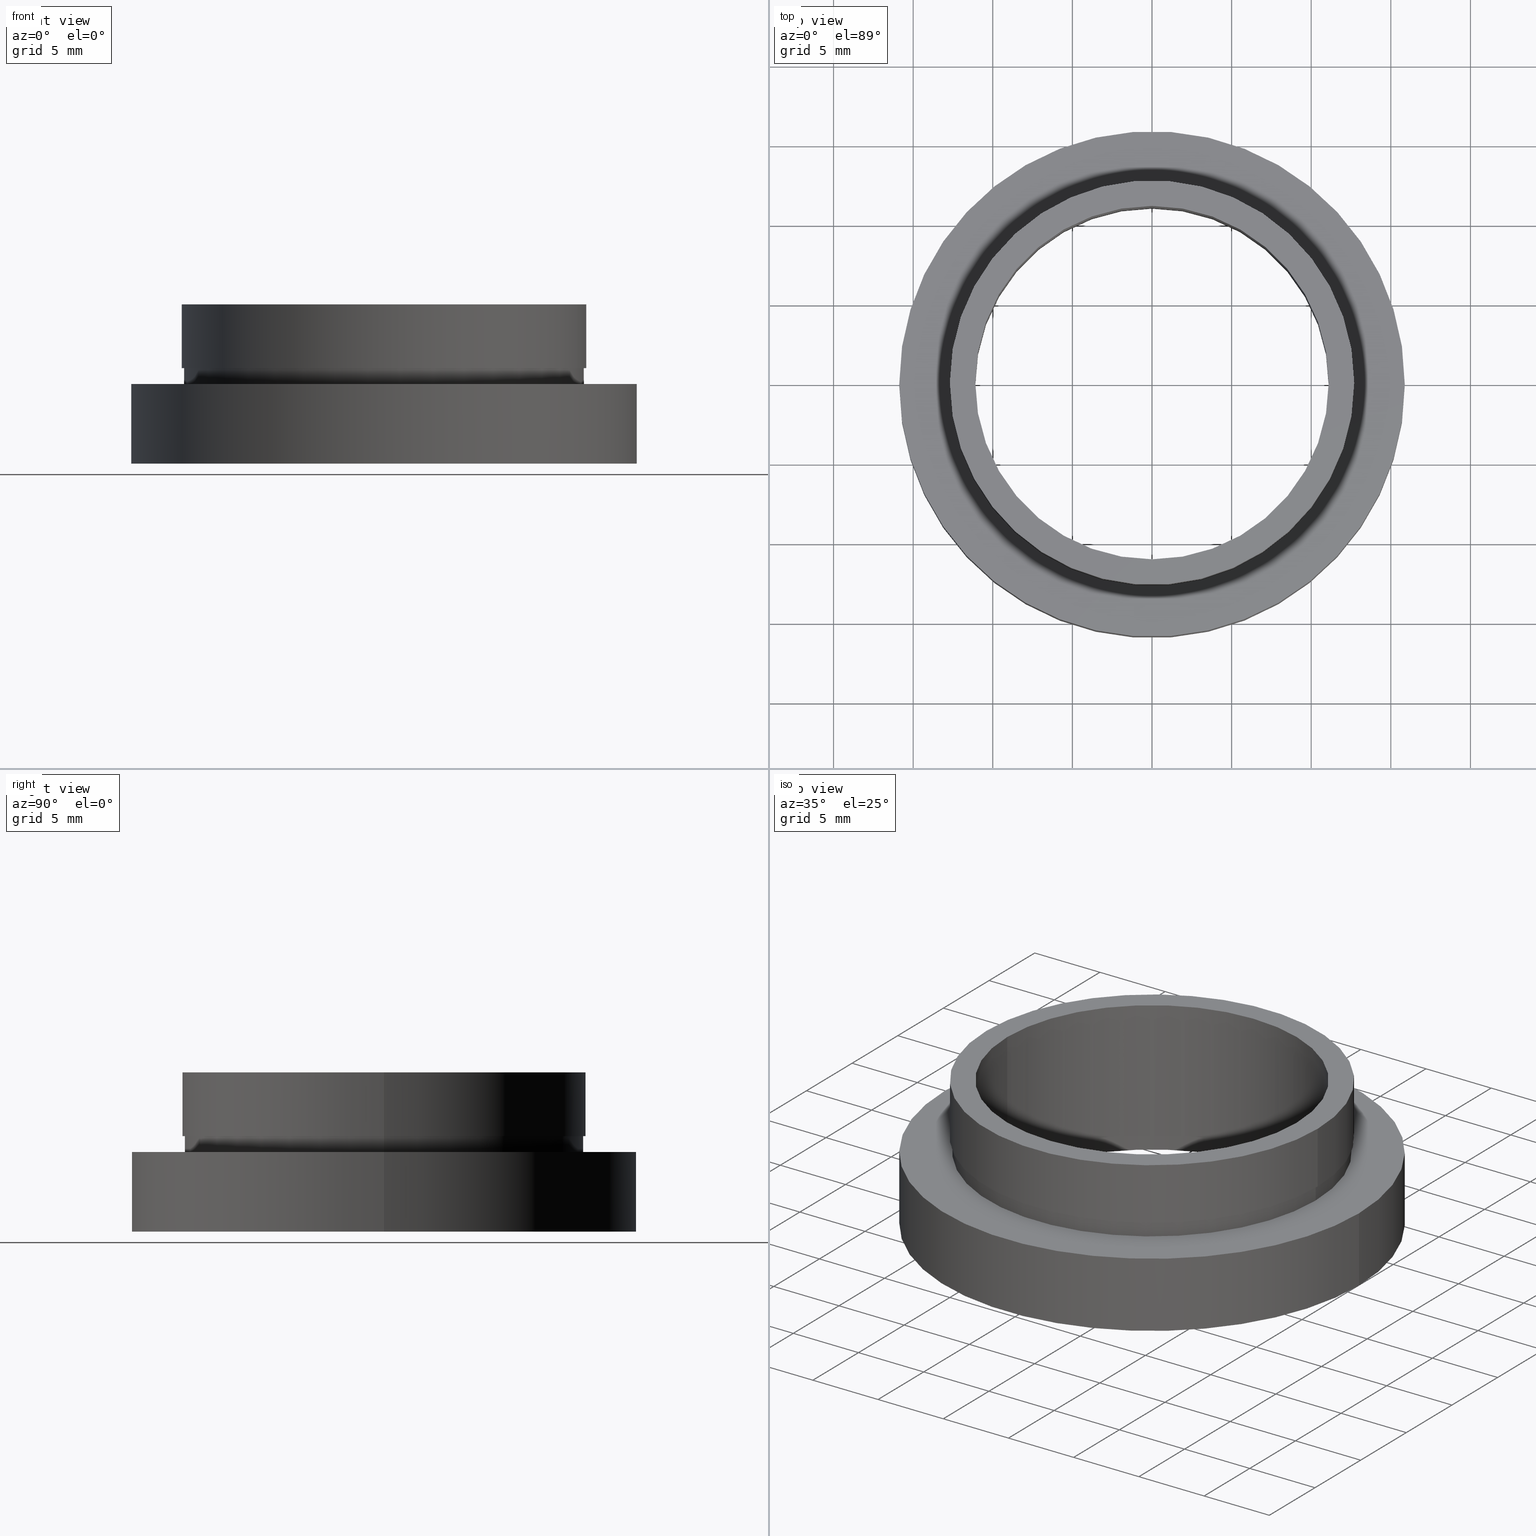
[diagram: canonical four-view strip — front | top / right | iso, engineering-drawing reading convention]
A machine part, canonical four-view strip (front | top / right | iso — engineering-drawing reading convention). The complete STEP part file that produces these views, byte-faithful:
ISO-10303-21;
HEADER;
FILE_DESCRIPTION (( 'STEP AP214' ),
    '1' );
FILE_NAME ('504076.STEP',
    '2019-09-16T08:20:47',
    ( 'user' ),
    ( '΢���й�' ),
    'SwSTEP 2.0',
    'SolidWorks 2016',
    '' );
FILE_SCHEMA (( 'AUTOMOTIVE_DESIGN' ));
ENDSEC;

DATA;
#1 = ADVANCED_FACE ( 'NONE', ( #333 ), #205, .T. ) ;
#2 = DIRECTION ( 'NONE',  ( -0.0000000000000000000, -0.0000000000000000000, -1.000000000000000000 ) ) ;
#3 = EDGE_CURVE ( 'NONE', #64, #320, #13, .T. ) ;
#4 = DIRECTION ( 'NONE',  ( -1.000000000000000000, 0.0000000000000000000, 0.0000000000000000000 ) ) ;
#5 = ORIENTED_EDGE ( 'NONE', *, *, #155, .T. ) ;
#6 = EDGE_CURVE ( 'NONE', #414, #295, #149, .T. ) ;
#7 = DIRECTION ( 'NONE',  ( -0.0000000000000000000, -0.0000000000000000000, -1.000000000000000000 ) ) ;
#8 = ORIENTED_EDGE ( 'NONE', *, *, #155, .F. ) ;
#9 = ADVANCED_FACE ( 'NONE', ( #190 ), #60, .T. ) ;
#10 = UNCERTAINTY_MEASURE_WITH_UNIT (LENGTH_MEASURE( 1.000000000000000100E-005 ), #168, 'distance_accuracy_value', 'NONE');
#11 = DIRECTION ( 'NONE',  ( -0.0000000000000000000, -0.0000000000000000000, -1.000000000000000000 ) ) ;
#12 =( LENGTH_UNIT ( ) NAMED_UNIT ( * ) SI_UNIT ( .MILLI., .METRE. ) );
#13 = CIRCLE ( 'NONE', #192, 12.55000000000000200 ) ;
#14 = EDGE_CURVE ( 'NONE', #202, #249, #113, .T. ) ;
#15 = SURFACE_STYLE_USAGE ( .BOTH. , #153 ) ;
#16 = DIRECTION ( 'NONE',  ( -0.0000000000000000000, -0.0000000000000000000, -1.000000000000000000 ) ) ;
#17 = DIRECTION ( 'NONE',  ( 0.0000000000000000000, 0.0000000000000000000, 1.000000000000000000 ) ) ;
#18 = EDGE_CURVE ( 'NONE', #320, #64, #327, .T. ) ;
#19 = DIRECTION ( 'NONE',  ( -1.000000000000000000, 0.0000000000000000000, 0.0000000000000000000 ) ) ;
#20 = CIRCLE ( 'NONE', #255, 11.10000000000000100 ) ;
#21 =( GEOMETRIC_REPRESENTATION_CONTEXT ( 3 ) GLOBAL_UNCERTAINTY_ASSIGNED_CONTEXT ( ( #264 ) ) GLOBAL_UNIT_ASSIGNED_CONTEXT ( ( #95, #408, #51 ) ) REPRESENTATION_CONTEXT ( 'NONE', 'WORKASPACE' ) );
#22 = ORIENTED_EDGE ( 'NONE', *, *, #411, .F. ) ;
#23 = CIRCLE ( 'NONE', #293, 11.10000000000000100 ) ;
#24 = CARTESIAN_POINT ( 'NONE',  ( 0.0000000000000000000, 0.0000000000000000000, 0.0000000000000000000 ) ) ;
#25 = CARTESIAN_POINT ( 'NONE',  ( 0.0000000000000000000, 0.0000000000000000000, -5.000000000000000900 ) ) ;
#26 =( NAMED_UNIT ( * ) SI_UNIT ( $, .STERADIAN. ) SOLID_ANGLE_UNIT ( ) );
#27 = MECHANICAL_DESIGN_GEOMETRIC_PRESENTATION_REPRESENTATION (  '', ( #82 ), #21 ) ;
#28 = CARTESIAN_POINT ( 'NONE',  ( -11.10000000000000100, 0.0000000000000000000, -10.00000000000000000 ) ) ;
#29 = EDGE_CURVE ( 'NONE', #249, #195, #245, .T. ) ;
#30 = FACE_OUTER_BOUND ( 'NONE', #346, .T. ) ;
#31 = EDGE_LOOP ( 'NONE', ( #308, #97, #74, #338 ) ) ;
#32 = SURFACE_STYLE_FILL_AREA ( #69 ) ;
#33 = FILL_AREA_STYLE_COLOUR ( '', #382 ) ;
#34 = EDGE_CURVE ( 'NONE', #66, #403, #78, .T. ) ;
#35 = ORIENTED_EDGE ( 'NONE', *, *, #14, .T. ) ;
#36 = ADVANCED_FACE ( 'NONE', ( #360 ), #318, .T. ) ;
#37 = COLOUR_RGB ( '',1.000000000000000000, 1.000000000000000000, 1.000000000000000000 ) ;
#38 = CARTESIAN_POINT ( 'NONE',  ( 0.0000000000000000000, 0.0000000000000000000, -4.000000000000000000 ) ) ;
#39 = DIRECTION ( 'NONE',  ( -1.000000000000000000, 0.0000000000000000000, 0.0000000000000000000 ) ) ;
#40 = EDGE_CURVE ( 'NONE', #414, #322, #268, .T. ) ;
#41 = UNCERTAINTY_MEASURE_WITH_UNIT (LENGTH_MEASURE( 1.000000000000000100E-005 ), #388, 'distance_accuracy_value', 'NONE');
#42 = EDGE_CURVE ( 'NONE', #379, #403, #100, .T. ) ;
#43 = ORIENTED_EDGE ( 'NONE', *, *, #157, .F. ) ;
#44 = VERTEX_POINT ( 'NONE', #427 ) ;
#45 = FACE_BOUND ( 'NONE', #272, .T. ) ;
#46 = DIRECTION ( 'NONE',  ( -0.0000000000000000000, -0.0000000000000000000, -1.000000000000000000 ) ) ;
#47 = CARTESIAN_POINT ( 'NONE',  ( 15.87500000000000000, 1.944126793646423200E-015, -19.14057971014493000 ) ) ;
#48 =( GEOMETRIC_REPRESENTATION_CONTEXT ( 3 ) GLOBAL_UNCERTAINTY_ASSIGNED_CONTEXT ( ( #281 ) ) GLOBAL_UNIT_ASSIGNED_CONTEXT ( ( #297, #111, #239 ) ) REPRESENTATION_CONTEXT ( 'NONE', 'WORKASPACE' ) );
#49 = ORIENTED_EDGE ( 'NONE', *, *, #34, .T. ) ;
#50 = EDGE_CURVE ( 'NONE', #322, #414, #172, .T. ) ;
#51 =( NAMED_UNIT ( * ) SI_UNIT ( $, .STERADIAN. ) SOLID_ANGLE_UNIT ( ) );
#52 = PRESENTATION_STYLE_ASSIGNMENT (( #421 ) ) ;
#53 = VECTOR ( 'NONE', #292, 1000.000000000000000 ) ;
#54 = DIRECTION ( 'NONE',  ( -1.000000000000000000, 0.0000000000000000000, 0.0000000000000000000 ) ) ;
#55 = FILL_AREA_STYLE ('',( #386 ) ) ;
#56 = DIRECTION ( 'NONE',  ( -0.0000000000000000000, -0.0000000000000000000, -1.000000000000000000 ) ) ;
#57 = DIRECTION ( 'NONE',  ( -1.000000000000000000, 0.0000000000000000000, 0.0000000000000000000 ) ) ;
#58 = ORIENTED_EDGE ( 'NONE', *, *, #157, .T. ) ;
#59 = AXIS2_PLACEMENT_3D ( 'NONE', #67, #349, #201 ) ;
#60 = CYLINDRICAL_SURFACE ( 'NONE', #90, 12.55000000000000200 ) ;
#61 = CIRCLE ( 'NONE', #306, 12.70000000000000100 ) ;
#62 = AXIS2_PLACEMENT_3D ( 'NONE', #331, #298, #241 ) ;
#63 = CARTESIAN_POINT ( 'NONE',  ( 12.55000000000000200, 1.536931732929928600E-015, -19.14057971014493000 ) ) ;
#64 = VERTEX_POINT ( 'NONE', #248 ) ;
#65 = DIRECTION ( 'NONE',  ( -1.000000000000000000, 0.0000000000000000000, 0.0000000000000000000 ) ) ;
#66 = VERTEX_POINT ( 'NONE', #364 ) ;
#67 = CARTESIAN_POINT ( 'NONE',  ( 0.0000000000000000000, 0.0000000000000000000, -5.000000000000000900 ) ) ;
#68 = CARTESIAN_POINT ( 'NONE',  ( 12.55000000000000200, 0.0000000000000000000, -5.000000000000000000 ) ) ;
#69 = FILL_AREA_STYLE ('',( #265 ) ) ;
#70 =( NAMED_UNIT ( * ) SI_UNIT ( $, .STERADIAN. ) SOLID_ANGLE_UNIT ( ) );
#71 = CARTESIAN_POINT ( 'NONE',  ( -15.87500000000000000, 0.0000000000000000000, -5.000000000000000900 ) ) ;
#72 = AXIS2_PLACEMENT_3D ( 'NONE', #138, #99, #362 ) ;
#73 = ORIENTED_EDGE ( 'NONE', *, *, #251, .F. ) ;
#74 = ORIENTED_EDGE ( 'NONE', *, *, #6, .T. ) ;
#75 = STYLED_ITEM ( 'NONE', ( #116 ), #310 ) ;
#76 = CARTESIAN_POINT ( 'NONE',  ( 11.10000000000000100, 0.0000000000000000000, 0.0000000000000000000 ) ) ;
#77 = DIRECTION ( 'NONE',  ( -0.0000000000000000000, 0.0000000000000000000, -1.000000000000000000 ) ) ;
#78 = LINE ( 'NONE', #209, #164 ) ;
#79 = SURFACE_STYLE_FILL_AREA ( #279 ) ;
#80 = FACE_OUTER_BOUND ( 'NONE', #326, .T. ) ;
#81 = DIRECTION ( 'NONE',  ( -1.000000000000000000, 0.0000000000000000000, 0.0000000000000000000 ) ) ;
#82 = STYLED_ITEM ( 'NONE', ( #237 ), #148 ) ;
#83 = ADVANCED_FACE ( 'NONE', ( #323, #107 ), #393, .F. ) ;
#84 =( LENGTH_UNIT ( ) NAMED_UNIT ( * ) SI_UNIT ( .MILLI., .METRE. ) );
#85 = CARTESIAN_POINT ( 'NONE',  ( 0.0000000000000000000, 0.0000000000000000000, -19.14057971014493000 ) ) ;
#86 = SURFACE_STYLE_FILL_AREA ( #283 ) ;
#87 =( NAMED_UNIT ( * ) SI_UNIT ( $, .STERADIAN. ) SOLID_ANGLE_UNIT ( ) );
#88 = EDGE_LOOP ( 'NONE', ( #5, #231 ) ) ;
#89 = PRESENTATION_LAYER_ASSIGNMENT (  '', '', ( #75 ) ) ;
#90 = AXIS2_PLACEMENT_3D ( 'NONE', #339, #348, #216 ) ;
#91 = MECHANICAL_DESIGN_GEOMETRIC_PRESENTATION_REPRESENTATION (  '', ( #75 ), #98 ) ;
#92 = CARTESIAN_POINT ( 'NONE',  ( 0.0000000000000000000, 0.0000000000000000000, -19.14057971014493000 ) ) ;
#93 = ORIENTED_EDGE ( 'NONE', *, *, #3, .F. ) ;
#94 = ORIENTED_EDGE ( 'NONE', *, *, #40, .T. ) ;
#95 =( LENGTH_UNIT ( ) NAMED_UNIT ( * ) SI_UNIT ( .MILLI., .METRE. ) );
#96 = DIRECTION ( 'NONE',  ( 0.0000000000000000000, 0.0000000000000000000, 1.000000000000000000 ) ) ;
#97 = ORIENTED_EDGE ( 'NONE', *, *, #50, .T. ) ;
#98 =( GEOMETRIC_REPRESENTATION_CONTEXT ( 3 ) GLOBAL_UNCERTAINTY_ASSIGNED_CONTEXT ( ( #41 ) ) GLOBAL_UNIT_ASSIGNED_CONTEXT ( ( #388, #126, #70 ) ) REPRESENTATION_CONTEXT ( 'NONE', 'WORKASPACE' ) );
#99 = DIRECTION ( 'NONE',  ( -0.0000000000000000000, -0.0000000000000000000, -1.000000000000000000 ) ) ;
#100 = CIRCLE ( 'NONE', #219, 11.10000000000000100 ) ;
#101 = ORIENTED_EDGE ( 'NONE', *, *, #34, .F. ) ;
#102 = CLOSED_SHELL ( 'NONE', ( #211, #154, #1, #148, #117, #191, #83, #9, #369, #36, #312, #380 ) ) ;
#103 = EDGE_LOOP ( 'NONE', ( #184, #151 ) ) ;
#104 = AXIS2_PLACEMENT_3D ( 'NONE', #38, #256, #181 ) ;
#105 = DIRECTION ( 'NONE',  ( -1.000000000000000000, 0.0000000000000000000, 0.0000000000000000000 ) ) ;
#106 = DIRECTION ( 'NONE',  ( -1.000000000000000000, 0.0000000000000000000, 0.0000000000000000000 ) ) ;
#107 = FACE_OUTER_BOUND ( 'NONE', #108, .T. ) ;
#108 = EDGE_LOOP ( 'NONE', ( #207, #361 ) ) ;
#109 = ORIENTED_EDGE ( 'NONE', *, *, #18, .F. ) ;
#110 = SURFACE_STYLE_USAGE ( .BOTH. , #416 ) ;
#111 =( NAMED_UNIT ( * ) PLANE_ANGLE_UNIT ( ) SI_UNIT ( $, .RADIAN. ) );
#112 = CIRCLE ( 'NONE', #285, 11.10000000000000100 ) ;
#113 = CIRCLE ( 'NONE', #229, 15.87500000000000000 ) ;
#114 = FILL_AREA_STYLE ('',( #134 ) ) ;
#115 = FACE_OUTER_BOUND ( 'NONE', #118, .T. ) ;
#116 = PRESENTATION_STYLE_ASSIGNMENT (( #197 ) ) ;
#117 = ADVANCED_FACE ( 'NONE', ( #307, #224 ), #332, .F. ) ;
#118 = EDGE_LOOP ( 'NONE', ( #35, #246, #22, #43 ) ) ;
#119 = DIRECTION ( 'NONE',  ( -0.0000000000000000000, -0.0000000000000000000, -1.000000000000000000 ) ) ;
#120 = CARTESIAN_POINT ( 'NONE',  ( 0.0000000000000000000, 0.0000000000000000000, -4.000000000000000000 ) ) ;
#121 = AXIS2_PLACEMENT_3D ( 'NONE', #85, #16, #401 ) ;
#122 = CARTESIAN_POINT ( 'NONE',  ( 0.0000000000000000000, 0.0000000000000000000, -5.000000000000000900 ) ) ;
#123 = EDGE_LOOP ( 'NONE', ( #220, #49, #131, #130 ) ) ;
#124 = DIRECTION ( 'NONE',  ( -0.0000000000000000000, -0.0000000000000000000, -1.000000000000000000 ) ) ;
#125 = ORIENTED_EDGE ( 'NONE', *, *, #42, .T. ) ;
#126 =( NAMED_UNIT ( * ) PLANE_ANGLE_UNIT ( ) SI_UNIT ( $, .RADIAN. ) );
#127 = DIRECTION ( 'NONE',  ( -1.000000000000000000, 0.0000000000000000000, 0.0000000000000000000 ) ) ;
#128 = EDGE_LOOP ( 'NONE', ( #194, #374, #58, #206 ) ) ;
#129 = DIRECTION ( 'NONE',  ( -0.0000000000000000000, -0.0000000000000000000, -1.000000000000000000 ) ) ;
#130 = ORIENTED_EDGE ( 'NONE', *, *, #282, .F. ) ;
#131 = ORIENTED_EDGE ( 'NONE', *, *, #407, .T. ) ;
#132 = APPLICATION_PROTOCOL_DEFINITION ( 'draft international standard', 'automotive_design', 1998, #159 ) ;
#133 = AXIS2_PLACEMENT_3D ( 'NONE', #24, #166, #81 ) ;
#134 = FILL_AREA_STYLE_COLOUR ( '', #259 ) ;
#135 = COLOUR_RGB ( '',1.000000000000000000, 1.000000000000000000, 1.000000000000000000 ) ;
#136 = CIRCLE ( 'NONE', #185, 12.55000000000000200 ) ;
#137 =( NAMED_UNIT ( * ) PLANE_ANGLE_UNIT ( ) SI_UNIT ( $, .RADIAN. ) );
#138 = CARTESIAN_POINT ( 'NONE',  ( 0.0000000000000000000, 0.0000000000000000000, -19.14057971014493000 ) ) ;
#139 = CARTESIAN_POINT ( 'NONE',  ( -15.87500000000000000, 0.0000000000000000000, -10.00000000000000000 ) ) ;
#140 = APPLICATION_CONTEXT ( 'automotive_design' ) ;
#141 = VERTEX_POINT ( 'NONE', #330 ) ;
#142 = DIRECTION ( 'NONE',  ( -1.000000000000000000, 0.0000000000000000000, 0.0000000000000000000 ) ) ;
#143 = ORIENTED_EDGE ( 'NONE', *, *, #407, .F. ) ;
#144 = AXIS2_PLACEMENT_3D ( 'NONE', #342, #96, #254 ) ;
#145 = DIRECTION ( 'NONE',  ( -0.0000000000000000000, -0.0000000000000000000, -1.000000000000000000 ) ) ;
#146 = ORIENTED_EDGE ( 'NONE', *, *, #50, .F. ) ;
#147 = AXIS2_PLACEMENT_3D ( 'NONE', #232, #17, #186 ) ;
#148 = ADVANCED_FACE ( 'NONE', ( #30 ), #200, .T. ) ;
#149 = LINE ( 'NONE', #384, #53 ) ;
#150 = VECTOR ( 'NONE', #291, 1000.000000000000000 ) ;
#151 = ORIENTED_EDGE ( 'NONE', *, *, #425, .F. ) ;
#152 = ORIENTED_EDGE ( 'NONE', *, *, #251, .T. ) ;
#153 = SURFACE_SIDE_STYLE ('',( #79 ) ) ;
#154 = ADVANCED_FACE ( 'NONE', ( #115 ), #344, .T. ) ;
#155 = EDGE_CURVE ( 'NONE', #141, #44, #136, .T. ) ;
#156 = DIRECTION ( 'NONE',  ( -1.000000000000000000, 0.0000000000000000000, 0.0000000000000000000 ) ) ;
#157 = EDGE_CURVE ( 'NONE', #202, #350, #316, .T. ) ;
#158 = CARTESIAN_POINT ( 'NONE',  ( 0.0000000000000000000, 0.0000000000000000000, -19.14057971014493000 ) ) ;
#159 = APPLICATION_CONTEXT ( 'automotive_design' ) ;
#160 = EDGE_LOOP ( 'NONE', ( #389, #367 ) ) ;
#161 = FACE_OUTER_BOUND ( 'NONE', #31, .T. ) ;
#162 = PRODUCT_DEFINITION_SHAPE ( 'NONE', 'NONE',  #356 ) ;
#163 = SURFACE_STYLE_USAGE ( .BOTH. , #234 ) ;
#164 = VECTOR ( 'NONE', #370, 1000.000000000000000 ) ;
#165 = SURFACE_STYLE_FILL_AREA ( #305 ) ;
#166 = DIRECTION ( 'NONE',  ( -0.0000000000000000000, -0.0000000000000000000, -1.000000000000000000 ) ) ;
#167 = COLOUR_RGB ( '',1.000000000000000000, 1.000000000000000000, 1.000000000000000000 ) ;
#168 =( LENGTH_UNIT ( ) NAMED_UNIT ( * ) SI_UNIT ( .MILLI., .METRE. ) );
#169 =( LENGTH_UNIT ( ) NAMED_UNIT ( * ) SI_UNIT ( .MILLI., .METRE. ) );
#170 = CARTESIAN_POINT ( 'NONE',  ( -12.55000000000000200, 0.0000000000000000000, -4.000000000000000000 ) ) ;
#171 = VECTOR ( 'NONE', #124, 1000.000000000000000 ) ;
#172 = CIRCLE ( 'NONE', #133, 12.70000000000000100 ) ;
#173 = ADVANCED_BREP_SHAPE_REPRESENTATION ( '504076', ( #310, #358 ), #319 ) ;
#174 = DIRECTION ( 'NONE',  ( -1.000000000000000000, 0.0000000000000000000, 0.0000000000000000000 ) ) ;
#175 = CARTESIAN_POINT ( 'NONE',  ( 0.0000000000000000000, 0.0000000000000000000, -4.000000000000000000 ) ) ;
#176 = DIRECTION ( 'NONE',  ( -0.0000000000000000000, -0.0000000000000000000, -1.000000000000000000 ) ) ;
#177 = ORIENTED_EDGE ( 'NONE', *, *, #284, .T. ) ;
#178 = AXIS2_PLACEMENT_3D ( 'NONE', #76, #77, #294 ) ;
#179 = CYLINDRICAL_SURFACE ( 'NONE', #289, 11.10000000000000100 ) ;
#180 = EDGE_LOOP ( 'NONE', ( #334, #417 ) ) ;
#181 = DIRECTION ( 'NONE',  ( -1.000000000000000000, 0.0000000000000000000, 0.0000000000000000000 ) ) ;
#182 = VERTEX_POINT ( 'NONE', #418 ) ;
#183 = CARTESIAN_POINT ( 'NONE',  ( 0.0000000000000000000, 0.0000000000000000000, -10.00000000000000000 ) ) ;
#184 = ORIENTED_EDGE ( 'NONE', *, *, #14, .F. ) ;
#185 = AXIS2_PLACEMENT_3D ( 'NONE', #381, #372, #156 ) ;
#186 = DIRECTION ( 'NONE',  ( 1.000000000000000000, 0.0000000000000000000, -0.0000000000000000000 ) ) ;
#187 = EDGE_CURVE ( 'NONE', #182, #66, #20, .T. ) ;
#188 = CARTESIAN_POINT ( 'NONE',  ( -11.10000000000000100, 0.0000000000000000000, -19.14057971014493000 ) ) ;
#189 = CIRCLE ( 'NONE', #301, 15.87500000000000000 ) ;
#190 = FACE_OUTER_BOUND ( 'NONE', #317, .T. ) ;
#191 = ADVANCED_FACE ( 'NONE', ( #161 ), #345, .T. ) ;
#192 = AXIS2_PLACEMENT_3D ( 'NONE', #175, #280, #4 ) ;
#193 = DIRECTION ( 'NONE',  ( -0.0000000000000000000, -0.0000000000000000000, -1.000000000000000000 ) ) ;
#194 = ORIENTED_EDGE ( 'NONE', *, *, #29, .F. ) ;
#195 = VERTEX_POINT ( 'NONE', #400 ) ;
#196 = AXIS2_PLACEMENT_3D ( 'NONE', #120, #11, #39 ) ;
#197 = SURFACE_STYLE_USAGE ( .BOTH. , #432 ) ;
#198 = MECHANICAL_DESIGN_GEOMETRIC_PRESENTATION_REPRESENTATION (  '', ( #208 ), #48 ) ;
#199 =( NAMED_UNIT ( * ) SI_UNIT ( $, .STERADIAN. ) SOLID_ANGLE_UNIT ( ) );
#200 = CYLINDRICAL_SURFACE ( 'NONE', #244, 12.70000000000000100 ) ;
#201 = DIRECTION ( 'NONE',  ( -1.000000000000000000, 0.0000000000000000000, 0.0000000000000000000 ) ) ;
#202 = VERTEX_POINT ( 'NONE', #71 ) ;
#203 = AXIS2_PLACEMENT_3D ( 'NONE', #210, #396, #105 ) ;
#204 = DIRECTION ( 'NONE',  ( 1.000000000000000000, 0.0000000000000000000, 0.0000000000000000000 ) ) ;
#205 = CYLINDRICAL_SURFACE ( 'NONE', #240, 12.55000000000000200 ) ;
#206 = ORIENTED_EDGE ( 'NONE', *, *, #261, .F. ) ;
#207 = ORIENTED_EDGE ( 'NONE', *, *, #419, .T. ) ;
#208 = STYLED_ITEM ( 'NONE', ( #52 ), #211 ) ;
#209 = CARTESIAN_POINT ( 'NONE',  ( 11.10000000000000100, 1.359357947053562400E-015, -19.14057971014493000 ) ) ;
#210 = CARTESIAN_POINT ( 'NONE',  ( 0.0000000000000000000, 0.0000000000000000000, -19.14057971014493000 ) ) ;
#211 = ADVANCED_FACE ( 'NONE', ( #399 ), #341, .F. ) ;
#212 = PLANE ( 'NONE',  #269 ) ;
#213 = PRESENTATION_LAYER_ASSIGNMENT (  '', '', ( #208 ) ) ;
#214 = EDGE_LOOP ( 'NONE', ( #215, #177, #8, #73 ) ) ;
#215 = ORIENTED_EDGE ( 'NONE', *, *, #18, .T. ) ;
#216 = DIRECTION ( 'NONE',  ( -1.000000000000000000, 0.0000000000000000000, 0.0000000000000000000 ) ) ;
#217 =( NAMED_UNIT ( * ) PLANE_ANGLE_UNIT ( ) SI_UNIT ( $, .RADIAN. ) );
#218 =( GEOMETRIC_REPRESENTATION_CONTEXT ( 3 ) GLOBAL_UNCERTAINTY_ASSIGNED_CONTEXT ( ( #252 ) ) GLOBAL_UNIT_ASSIGNED_CONTEXT ( ( #84, #217, #87 ) ) REPRESENTATION_CONTEXT ( 'NONE', 'WORKASPACE' ) );
#219 = AXIS2_PLACEMENT_3D ( 'NONE', #311, #129, #65 ) ;
#220 = ORIENTED_EDGE ( 'NONE', *, *, #415, .F. ) ;
#221 = SURFACE_STYLE_FILL_AREA ( #114 ) ;
#222 = MECHANICAL_DESIGN_GEOMETRIC_PRESENTATION_REPRESENTATION (  '', ( #233 ), #218 ) ;
#223 = DIRECTION ( 'NONE',  ( -0.0000000000000000000, -0.0000000000000000000, -1.000000000000000000 ) ) ;
#224 = FACE_BOUND ( 'NONE', #160, .T. ) ;
#225 = EDGE_LOOP ( 'NONE', ( #109, #93 ) ) ;
#226 = SHAPE_DEFINITION_REPRESENTATION ( #162, #173 ) ;
#227 = PRESENTATION_LAYER_ASSIGNMENT (  '', '', ( #233 ) ) ;
#228 = VECTOR ( 'NONE', #193, 1000.000000000000000 ) ;
#229 = AXIS2_PLACEMENT_3D ( 'NONE', #122, #56, #347 ) ;
#230 = DIRECTION ( 'NONE',  ( -1.000000000000000000, 0.0000000000000000000, 0.0000000000000000000 ) ) ;
#231 = ORIENTED_EDGE ( 'NONE', *, *, #263, .T. ) ;
#232 = CARTESIAN_POINT ( 'NONE',  ( 15.87500000000000000, 0.0000000000000000000, -10.00000000000000000 ) ) ;
#233 = STYLED_ITEM ( 'NONE', ( #302 ), #191 ) ;
#234 = SURFACE_SIDE_STYLE ('',( #221 ) ) ;
#235 = PRODUCT_CONTEXT ( 'NONE', #140, 'mechanical' ) ;
#236 = AXIS2_PLACEMENT_3D ( 'NONE', #92, #300, #230 ) ;
#237 = PRESENTATION_STYLE_ASSIGNMENT (( #110 ) ) ;
#238 = CARTESIAN_POINT ( 'NONE',  ( 0.0000000000000000000, 0.0000000000000000000, -19.14057971014493000 ) ) ;
#239 =( NAMED_UNIT ( * ) SI_UNIT ( $, .STERADIAN. ) SOLID_ANGLE_UNIT ( ) );
#240 = AXIS2_PLACEMENT_3D ( 'NONE', #238, #2, #127 ) ;
#241 = DIRECTION ( 'NONE',  ( -1.000000000000000000, 0.0000000000000000000, 0.0000000000000000000 ) ) ;
#242 = CARTESIAN_POINT ( 'NONE',  ( 12.70000000000000100, 1.555301434917138600E-015, -4.000000000000000000 ) ) ;
#243 = DIRECTION ( 'NONE',  ( -1.000000000000000000, 0.0000000000000000000, 0.0000000000000000000 ) ) ;
#244 = AXIS2_PLACEMENT_3D ( 'NONE', #357, #176, #258 ) ;
#245 = LINE ( 'NONE', #47, #420 ) ;
#246 = ORIENTED_EDGE ( 'NONE', *, *, #29, .T. ) ;
#247 = FILL_AREA_STYLE_COLOUR ( '', #167 ) ;
#248 = CARTESIAN_POINT ( 'NONE',  ( 12.55000000000000200, 1.536931732929928600E-015, -4.000000000000000000 ) ) ;
#249 = VERTEX_POINT ( 'NONE', #371 ) ;
#250 = DIRECTION ( 'NONE',  ( -0.0000000000000000000, 0.0000000000000000000, -1.000000000000000000 ) ) ;
#251 = EDGE_CURVE ( 'NONE', #320, #141, #276, .T. ) ;
#252 = UNCERTAINTY_MEASURE_WITH_UNIT (LENGTH_MEASURE( 1.000000000000000100E-005 ), #84, 'distance_accuracy_value', 'NONE');
#253 = FACE_BOUND ( 'NONE', #88, .T. ) ;
#254 = DIRECTION ( 'NONE',  ( 1.000000000000000000, 0.0000000000000000000, -0.0000000000000000000 ) ) ;
#255 = AXIS2_PLACEMENT_3D ( 'NONE', #270, #274, #174 ) ;
#256 = DIRECTION ( 'NONE',  ( -0.0000000000000000000, -0.0000000000000000000, -1.000000000000000000 ) ) ;
#257 = ORIENTED_EDGE ( 'NONE', *, *, #6, .F. ) ;
#258 = DIRECTION ( 'NONE',  ( -1.000000000000000000, 0.0000000000000000000, 0.0000000000000000000 ) ) ;
#259 = COLOUR_RGB ( '',1.000000000000000000, 1.000000000000000000, 1.000000000000000000 ) ;
#260 = FACE_OUTER_BOUND ( 'NONE', #180, .T. ) ;
#261 = EDGE_CURVE ( 'NONE', #195, #350, #429, .T. ) ;
#262 = CIRCLE ( 'NONE', #59, 12.55000000000000200 ) ;
#263 = EDGE_CURVE ( 'NONE', #44, #141, #262, .T. ) ;
#264 = UNCERTAINTY_MEASURE_WITH_UNIT (LENGTH_MEASURE( 1.000000000000000100E-005 ), #95, 'distance_accuracy_value', 'NONE');
#265 = FILL_AREA_STYLE_COLOUR ( '', #37 ) ;
#266 = ORIENTED_EDGE ( 'NONE', *, *, #40, .F. ) ;
#267 = SURFACE_STYLE_FILL_AREA ( #55 ) ;
#268 = CIRCLE ( 'NONE', #404, 12.70000000000000100 ) ;
#269 = AXIS2_PLACEMENT_3D ( 'NONE', #68, #250, #142 ) ;
#270 = CARTESIAN_POINT ( 'NONE',  ( 0.0000000000000000000, 0.0000000000000000000, 0.0000000000000000000 ) ) ;
#271 = PRESENTATION_LAYER_ASSIGNMENT (  '', '', ( #390 ) ) ;
#272 = EDGE_LOOP ( 'NONE', ( #368, #143 ) ) ;
#273 = ORIENTED_EDGE ( 'NONE', *, *, #351, .T. ) ;
#274 = DIRECTION ( 'NONE',  ( -0.0000000000000000000, -0.0000000000000000000, -1.000000000000000000 ) ) ;
#275 = MECHANICAL_DESIGN_GEOMETRIC_PRESENTATION_REPRESENTATION (  '', ( #390 ), #303 ) ;
#276 = LINE ( 'NONE', #431, #150 ) ;
#277 = ORIENTED_EDGE ( 'NONE', *, *, #187, .F. ) ;
#278 = DIRECTION ( 'NONE',  ( -0.0000000000000000000, -0.0000000000000000000, -1.000000000000000000 ) ) ;
#279 = FILL_AREA_STYLE ('',( #247 ) ) ;
#280 = DIRECTION ( 'NONE',  ( -0.0000000000000000000, -0.0000000000000000000, -1.000000000000000000 ) ) ;
#281 = UNCERTAINTY_MEASURE_WITH_UNIT (LENGTH_MEASURE( 1.000000000000000100E-005 ), #297, 'distance_accuracy_value', 'NONE');
#282 = EDGE_CURVE ( 'NONE', #182, #379, #296, .T. ) ;
#283 = FILL_AREA_STYLE ('',( #33 ) ) ;
#284 = EDGE_CURVE ( 'NONE', #64, #44, #365, .T. ) ;
#285 = AXIS2_PLACEMENT_3D ( 'NONE', #287, #359, #57 ) ;
#286 = ORIENTED_EDGE ( 'NONE', *, *, #282, .T. ) ;
#287 = CARTESIAN_POINT ( 'NONE',  ( 0.0000000000000000000, 0.0000000000000000000, 0.0000000000000000000 ) ) ;
#288 = CIRCLE ( 'NONE', #315, 15.87500000000000000 ) ;
#289 = AXIS2_PLACEMENT_3D ( 'NONE', #158, #145, #406 ) ;
#290 = DIRECTION ( 'NONE',  ( -0.0000000000000000000, -0.0000000000000000000, -1.000000000000000000 ) ) ;
#291 = DIRECTION ( 'NONE',  ( -0.0000000000000000000, -0.0000000000000000000, -1.000000000000000000 ) ) ;
#292 = DIRECTION ( 'NONE',  ( -0.0000000000000000000, -0.0000000000000000000, -1.000000000000000000 ) ) ;
#293 = AXIS2_PLACEMENT_3D ( 'NONE', #183, #383, #243 ) ;
#294 = DIRECTION ( 'NONE',  ( -1.000000000000000000, 0.0000000000000000000, 0.0000000000000000000 ) ) ;
#295 = VERTEX_POINT ( 'NONE', #395 ) ;
#296 = LINE ( 'NONE', #188, #394 ) ;
#297 =( LENGTH_UNIT ( ) NAMED_UNIT ( * ) SI_UNIT ( .MILLI., .METRE. ) );
#298 = DIRECTION ( 'NONE',  ( -0.0000000000000000000, -0.0000000000000000000, -1.000000000000000000 ) ) ;
#299 = SURFACE_SIDE_STYLE ('',( #32 ) ) ;
#300 = DIRECTION ( 'NONE',  ( -0.0000000000000000000, -0.0000000000000000000, -1.000000000000000000 ) ) ;
#301 = AXIS2_PLACEMENT_3D ( 'NONE', #309, #7, #54 ) ;
#302 = PRESENTATION_STYLE_ASSIGNMENT (( #163 ) ) ;
#303 =( GEOMETRIC_REPRESENTATION_CONTEXT ( 3 ) GLOBAL_UNCERTAINTY_ASSIGNED_CONTEXT ( ( #402 ) ) GLOBAL_UNIT_ASSIGNED_CONTEXT ( ( #169, #376, #26 ) ) REPRESENTATION_CONTEXT ( 'NONE', 'WORKASPACE' ) );
#304 = LINE ( 'NONE', #422, #355 ) ;
#305 = FILL_AREA_STYLE ('',( #314 ) ) ;
#306 = AXIS2_PLACEMENT_3D ( 'NONE', #363, #46, #19 ) ;
#307 = FACE_OUTER_BOUND ( 'NONE', #336, .T. ) ;
#308 = ORIENTED_EDGE ( 'NONE', *, *, #351, .F. ) ;
#309 = CARTESIAN_POINT ( 'NONE',  ( 0.0000000000000000000, 0.0000000000000000000, -10.00000000000000000 ) ) ;
#310 = MANIFOLD_SOLID_BREP ( '��ת1', #102 ) ;
#311 = CARTESIAN_POINT ( 'NONE',  ( 0.0000000000000000000, 0.0000000000000000000, -10.00000000000000000 ) ) ;
#312 = ADVANCED_FACE ( 'NONE', ( #45, #260 ), #343, .F. ) ;
#313 = DIRECTION ( 'NONE',  ( -0.0000000000000000000, -0.0000000000000000000, -1.000000000000000000 ) ) ;
#314 = FILL_AREA_STYLE_COLOUR ( '', #433 ) ;
#315 = AXIS2_PLACEMENT_3D ( 'NONE', #25, #223, #106 ) ;
#316 = LINE ( 'NONE', #412, #171 ) ;
#317 = EDGE_LOOP ( 'NONE', ( #398, #397, #152, #353 ) ) ;
#318 = CYLINDRICAL_SURFACE ( 'NONE', #121, 15.87500000000000000 ) ;
#319 =( GEOMETRIC_REPRESENTATION_CONTEXT ( 3 ) GLOBAL_UNCERTAINTY_ASSIGNED_CONTEXT ( ( #354 ) ) GLOBAL_UNIT_ASSIGNED_CONTEXT ( ( #12, #335, #430 ) ) REPRESENTATION_CONTEXT ( 'NONE', 'WORKASPACE' ) );
#320 = VERTEX_POINT ( 'NONE', #170 ) ;
#321 = STYLED_ITEM ( 'NONE', ( #424 ), #173 ) ;
#322 = VERTEX_POINT ( 'NONE', #391 ) ;
#323 = FACE_BOUND ( 'NONE', #225, .T. ) ;
#324 = CIRCLE ( 'NONE', #104, 12.70000000000000100 ) ;
#325 = PRODUCT ( '504076', '504076', '', ( #235 ) ) ;
#326 = EDGE_LOOP ( 'NONE', ( #101, #277, #286, #125 ) ) ;
#327 = CIRCLE ( 'NONE', #196, 12.55000000000000200 ) ;
#328 = MECHANICAL_DESIGN_GEOMETRIC_PRESENTATION_REPRESENTATION (  '', ( #321 ), #340 ) ;
#329 = PRODUCT_DEFINITION_CONTEXT ( 'detailed design', #159, 'design' ) ;
#330 = CARTESIAN_POINT ( 'NONE',  ( -12.55000000000000200, 0.0000000000000000000, -5.000000000000000900 ) ) ;
#331 = CARTESIAN_POINT ( 'NONE',  ( 0.0000000000000000000, 0.0000000000000000000, -10.00000000000000000 ) ) ;
#332 = PLANE ( 'NONE',  #178 ) ;
#333 = FACE_OUTER_BOUND ( 'NONE', #214, .T. ) ;
#334 = ORIENTED_EDGE ( 'NONE', *, *, #411, .T. ) ;
#335 =( NAMED_UNIT ( * ) PLANE_ANGLE_UNIT ( ) SI_UNIT ( $, .RADIAN. ) );
#336 = EDGE_LOOP ( 'NONE', ( #266, #146 ) ) ;
#337 = PRESENTATION_LAYER_ASSIGNMENT (  '', '', ( #321 ) ) ;
#338 = ORIENTED_EDGE ( 'NONE', *, *, #366, .F. ) ;
#339 = CARTESIAN_POINT ( 'NONE',  ( 0.0000000000000000000, 0.0000000000000000000, -19.14057971014493000 ) ) ;
#340 =( GEOMETRIC_REPRESENTATION_CONTEXT ( 3 ) GLOBAL_UNCERTAINTY_ASSIGNED_CONTEXT ( ( #10 ) ) GLOBAL_UNIT_ASSIGNED_CONTEXT ( ( #168, #137, #199 ) ) REPRESENTATION_CONTEXT ( 'NONE', 'WORKASPACE' ) );
#341 = CYLINDRICAL_SURFACE ( 'NONE', #72, 11.10000000000000100 ) ;
#342 = CARTESIAN_POINT ( 'NONE',  ( 12.70000000000000100, 0.0000000000000000000, -4.000000000000000000 ) ) ;
#343 = PLANE ( 'NONE',  #147 ) ;
#344 = CYLINDRICAL_SURFACE ( 'NONE', #236, 15.87500000000000000 ) ;
#345 = CYLINDRICAL_SURFACE ( 'NONE', #203, 12.70000000000000100 ) ;
#346 = EDGE_LOOP ( 'NONE', ( #94, #273, #413, #257 ) ) ;
#347 = DIRECTION ( 'NONE',  ( -1.000000000000000000, 0.0000000000000000000, 0.0000000000000000000 ) ) ;
#348 = DIRECTION ( 'NONE',  ( -0.0000000000000000000, -0.0000000000000000000, -1.000000000000000000 ) ) ;
#349 = DIRECTION ( 'NONE',  ( -0.0000000000000000000, -0.0000000000000000000, -1.000000000000000000 ) ) ;
#350 = VERTEX_POINT ( 'NONE', #139 ) ;
#351 = EDGE_CURVE ( 'NONE', #322, #405, #304, .T. ) ;
#352 = CARTESIAN_POINT ( 'NONE',  ( 0.0000000000000000000, 0.0000000000000000000, 0.0000000000000000000 ) ) ;
#353 = ORIENTED_EDGE ( 'NONE', *, *, #263, .F. ) ;
#354 = UNCERTAINTY_MEASURE_WITH_UNIT (LENGTH_MEASURE( 1.000000000000000100E-005 ), #12, 'distance_accuracy_value', 'NONE');
#355 = VECTOR ( 'NONE', #119, 1000.000000000000000 ) ;
#356 = PRODUCT_DEFINITION ( 'δ֪', '', #385, #329 ) ;
#357 = CARTESIAN_POINT ( 'NONE',  ( 0.0000000000000000000, 0.0000000000000000000, -19.14057971014493000 ) ) ;
#358 = AXIS2_PLACEMENT_3D ( 'NONE', #352, #410, #204 ) ;
#359 = DIRECTION ( 'NONE',  ( -0.0000000000000000000, -0.0000000000000000000, -1.000000000000000000 ) ) ;
#360 = FACE_OUTER_BOUND ( 'NONE', #128, .T. ) ;
#361 = ORIENTED_EDGE ( 'NONE', *, *, #366, .T. ) ;
#362 = DIRECTION ( 'NONE',  ( -1.000000000000000000, 0.0000000000000000000, 0.0000000000000000000 ) ) ;
#363 = CARTESIAN_POINT ( 'NONE',  ( 0.0000000000000000000, 0.0000000000000000000, -4.000000000000000000 ) ) ;
#364 = CARTESIAN_POINT ( 'NONE',  ( 11.10000000000000100, 1.359357947053562400E-015, 0.0000000000000000000 ) ) ;
#365 = LINE ( 'NONE', #63, #228 ) ;
#366 = EDGE_CURVE ( 'NONE', #405, #295, #324, .T. ) ;
#367 = ORIENTED_EDGE ( 'NONE', *, *, #415, .T. ) ;
#368 = ORIENTED_EDGE ( 'NONE', *, *, #42, .F. ) ;
#369 = ADVANCED_FACE ( 'NONE', ( #375, #253 ), #212, .F. ) ;
#370 = DIRECTION ( 'NONE',  ( -0.0000000000000000000, -0.0000000000000000000, -1.000000000000000000 ) ) ;
#371 = CARTESIAN_POINT ( 'NONE',  ( 15.87500000000000000, 1.944126793646423200E-015, -5.000000000000000900 ) ) ;
#372 = DIRECTION ( 'NONE',  ( -0.0000000000000000000, -0.0000000000000000000, -1.000000000000000000 ) ) ;
#373 = PRODUCT_RELATED_PRODUCT_CATEGORY ( 'part', '', ( #325 ) ) ;
#374 = ORIENTED_EDGE ( 'NONE', *, *, #425, .T. ) ;
#375 = FACE_OUTER_BOUND ( 'NONE', #103, .T. ) ;
#376 =( NAMED_UNIT ( * ) PLANE_ANGLE_UNIT ( ) SI_UNIT ( $, .RADIAN. ) );
#377 = SURFACE_SIDE_STYLE ('',( #267 ) ) ;
#378 = CARTESIAN_POINT ( 'NONE',  ( 0.0000000000000000000, 0.0000000000000000000, 0.0000000000000000000 ) ) ;
#379 = VERTEX_POINT ( 'NONE', #28 ) ;
#380 = ADVANCED_FACE ( 'NONE', ( #80 ), #179, .F. ) ;
#381 = CARTESIAN_POINT ( 'NONE',  ( 0.0000000000000000000, 0.0000000000000000000, -5.000000000000000900 ) ) ;
#382 = COLOUR_RGB ( '',1.000000000000000000, 1.000000000000000000, 1.000000000000000000 ) ;
#383 = DIRECTION ( 'NONE',  ( -0.0000000000000000000, -0.0000000000000000000, -1.000000000000000000 ) ) ;
#384 = CARTESIAN_POINT ( 'NONE',  ( -12.70000000000000100, 0.0000000000000000000, -19.14057971014493000 ) ) ;
#385 = PRODUCT_DEFINITION_FORMATION_WITH_SPECIFIED_SOURCE ( '�κ�', '', #325, .NOT_KNOWN. ) ;
#386 = FILL_AREA_STYLE_COLOUR ( '', #135 ) ;
#387 = DIRECTION ( 'NONE',  ( -1.000000000000000000, 0.0000000000000000000, 0.0000000000000000000 ) ) ;
#388 =( LENGTH_UNIT ( ) NAMED_UNIT ( * ) SI_UNIT ( .MILLI., .METRE. ) );
#389 = ORIENTED_EDGE ( 'NONE', *, *, #187, .T. ) ;
#390 = STYLED_ITEM ( 'NONE', ( #409 ), #380 ) ;
#391 = CARTESIAN_POINT ( 'NONE',  ( 12.70000000000000100, 1.555301434917138600E-015, 0.0000000000000000000 ) ) ;
#392 = PRESENTATION_LAYER_ASSIGNMENT (  '', '', ( #82 ) ) ;
#393 = PLANE ( 'NONE',  #144 ) ;
#394 = VECTOR ( 'NONE', #290, 1000.000000000000000 ) ;
#395 = CARTESIAN_POINT ( 'NONE',  ( -12.70000000000000100, 0.0000000000000000000, -4.000000000000000000 ) ) ;
#396 = DIRECTION ( 'NONE',  ( -0.0000000000000000000, -0.0000000000000000000, -1.000000000000000000 ) ) ;
#397 = ORIENTED_EDGE ( 'NONE', *, *, #3, .T. ) ;
#398 = ORIENTED_EDGE ( 'NONE', *, *, #284, .F. ) ;
#399 = FACE_OUTER_BOUND ( 'NONE', #123, .T. ) ;
#400 = CARTESIAN_POINT ( 'NONE',  ( 15.87500000000000000, 1.944126793646423200E-015, -10.00000000000000000 ) ) ;
#401 = DIRECTION ( 'NONE',  ( -1.000000000000000000, 0.0000000000000000000, 0.0000000000000000000 ) ) ;
#402 = UNCERTAINTY_MEASURE_WITH_UNIT (LENGTH_MEASURE( 1.000000000000000100E-005 ), #169, 'distance_accuracy_value', 'NONE');
#403 = VERTEX_POINT ( 'NONE', #423 ) ;
#404 = AXIS2_PLACEMENT_3D ( 'NONE', #378, #278, #387 ) ;
#405 = VERTEX_POINT ( 'NONE', #242 ) ;
#406 = DIRECTION ( 'NONE',  ( -1.000000000000000000, 0.0000000000000000000, 0.0000000000000000000 ) ) ;
#407 = EDGE_CURVE ( 'NONE', #403, #379, #23, .T. ) ;
#408 =( NAMED_UNIT ( * ) PLANE_ANGLE_UNIT ( ) SI_UNIT ( $, .RADIAN. ) );
#409 = PRESENTATION_STYLE_ASSIGNMENT (( #428 ) ) ;
#410 = DIRECTION ( 'NONE',  ( 0.0000000000000000000, 0.0000000000000000000, 1.000000000000000000 ) ) ;
#411 = EDGE_CURVE ( 'NONE', #350, #195, #189, .T. ) ;
#412 = CARTESIAN_POINT ( 'NONE',  ( -15.87500000000000000, 0.0000000000000000000, -19.14057971014493000 ) ) ;
#413 = ORIENTED_EDGE ( 'NONE', *, *, #419, .F. ) ;
#414 = VERTEX_POINT ( 'NONE', #434 ) ;
#415 = EDGE_CURVE ( 'NONE', #66, #182, #112, .T. ) ;
#416 = SURFACE_SIDE_STYLE ('',( #86 ) ) ;
#417 = ORIENTED_EDGE ( 'NONE', *, *, #261, .T. ) ;
#418 = CARTESIAN_POINT ( 'NONE',  ( -11.10000000000000100, 0.0000000000000000000, 0.0000000000000000000 ) ) ;
#419 = EDGE_CURVE ( 'NONE', #295, #405, #61, .T. ) ;
#420 = VECTOR ( 'NONE', #313, 1000.000000000000000 ) ;
#421 = SURFACE_STYLE_USAGE ( .BOTH. , #299 ) ;
#422 = CARTESIAN_POINT ( 'NONE',  ( 12.70000000000000100, 1.555301434917138600E-015, -19.14057971014493000 ) ) ;
#423 = CARTESIAN_POINT ( 'NONE',  ( 11.10000000000000100, 1.359357947053562400E-015, -10.00000000000000000 ) ) ;
#424 = PRESENTATION_STYLE_ASSIGNMENT (( #15 ) ) ;
#425 = EDGE_CURVE ( 'NONE', #249, #202, #288, .T. ) ;
#426 = APPLICATION_PROTOCOL_DEFINITION ( 'draft international standard', 'automotive_design', 1998, #140 ) ;
#427 = CARTESIAN_POINT ( 'NONE',  ( 12.55000000000000200, 1.536931732929928600E-015, -5.000000000000000900 ) ) ;
#428 = SURFACE_STYLE_USAGE ( .BOTH. , #377 ) ;
#429 = CIRCLE ( 'NONE', #62, 15.87500000000000000 ) ;
#430 =( NAMED_UNIT ( * ) SI_UNIT ( $, .STERADIAN. ) SOLID_ANGLE_UNIT ( ) );
#431 = CARTESIAN_POINT ( 'NONE',  ( -12.55000000000000200, 0.0000000000000000000, -19.14057971014493000 ) ) ;
#432 = SURFACE_SIDE_STYLE ('',( #165 ) ) ;
#433 = COLOUR_RGB ( '',1.000000000000000000, 1.000000000000000000, 1.000000000000000000 ) ;
#434 = CARTESIAN_POINT ( 'NONE',  ( -12.70000000000000100, 0.0000000000000000000, 0.0000000000000000000 ) ) ;
ENDSEC;
END-ISO-10303-21;
